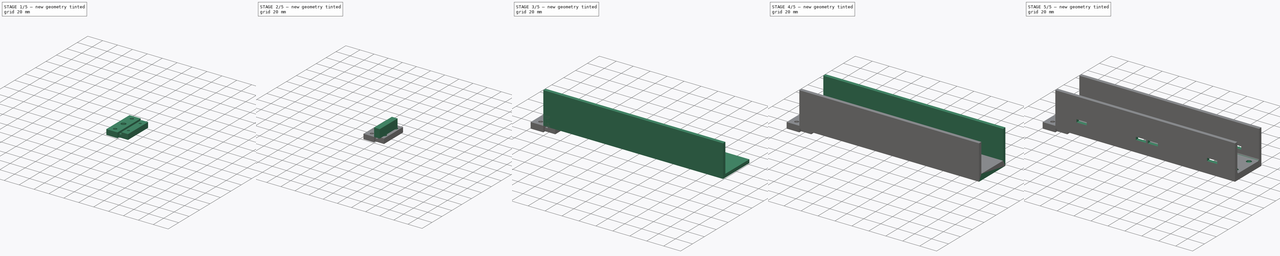
[diagram: build sequence overview — one tinted view per stage of 5, left to right]
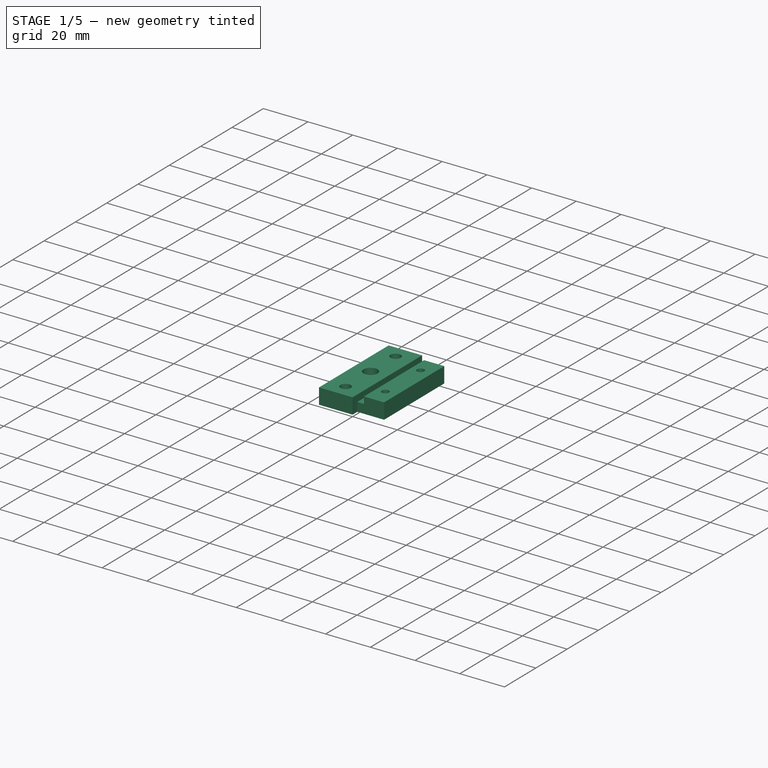
[diagram: stage 1 of 5 — iso view after this stage's code; geometry added in this stage tinted green]
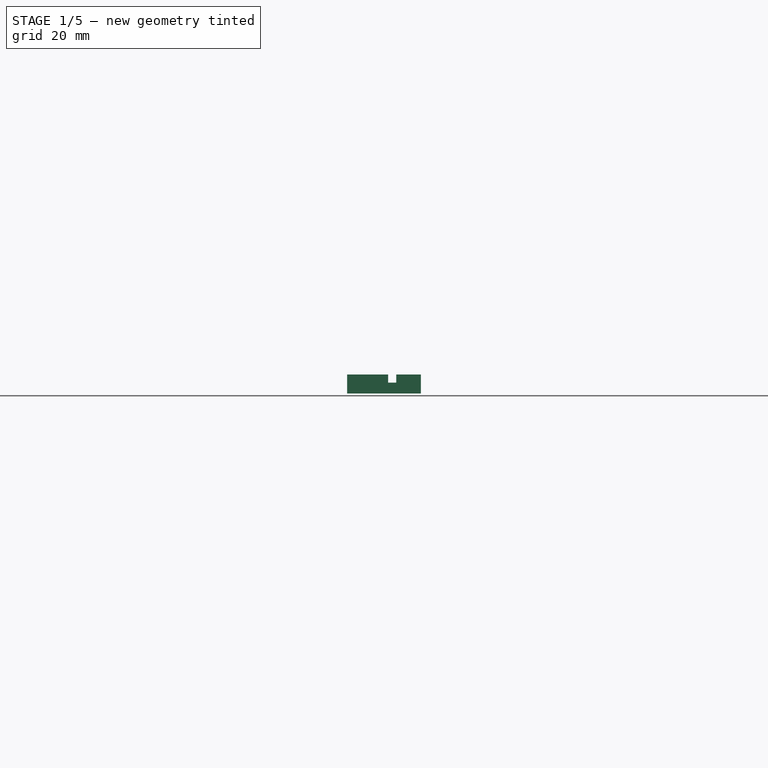
[diagram: stage 1 of 5 — front view after this stage's code; geometry added in this stage tinted green]
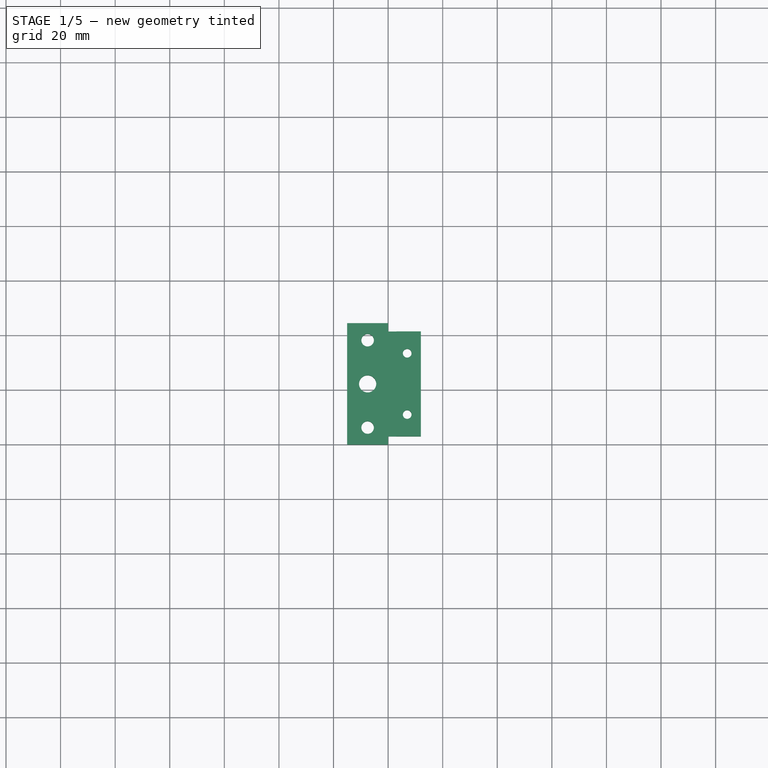
[diagram: stage 1 of 5 — top view after this stage's code; geometry added in this stage tinted green]
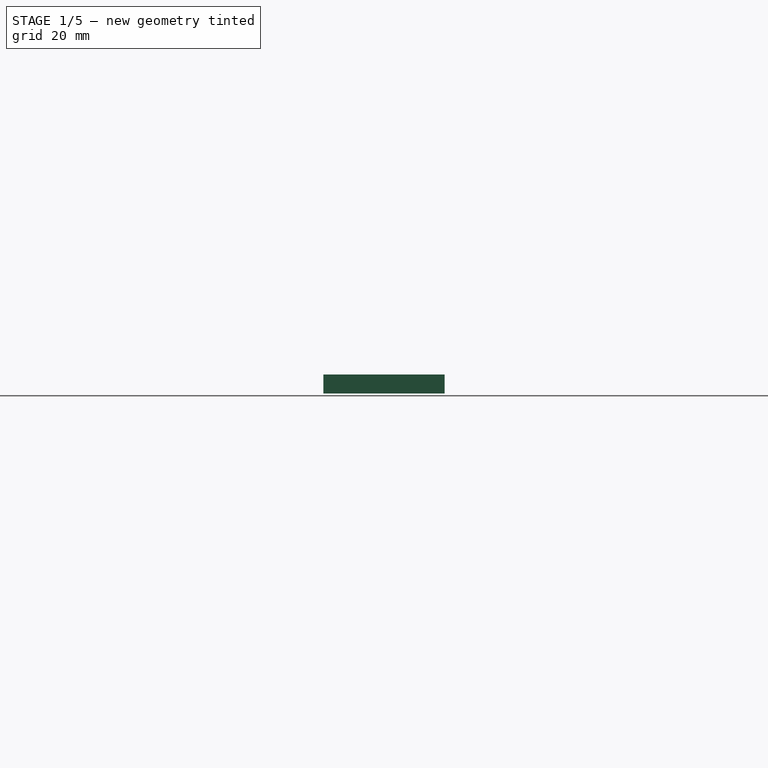
[diagram: stage 1 of 5 — right view after this stage's code; geometry added in this stage tinted green]
FCSTD DOCUMENT  (FreeCAD 1.0R39319 (Git))
Label: RackPanel
License: All rights reserved
objects: Sketcher::SketchObject×19, PartDesign::Pocket×13, PartDesign::Pad×6, PartDesign::Body×3, PartDesign::Fillet×1, Part::Feature×1
note: 102 computed .brp shape members not serialized (recipe doc carries the construction recipe); baked Part::Feature solids carry a one-line shape summary decoded from their .brp

FEATURE [PartDesign::Body] SideBarBody
  AllowCompound = false
  Group = -> [SideBarBaseSketch,SideBarPad,TopNutTrapSketch,TopNutTrapPocket,TopScrewHoleSketch,TopScrewHolePocket,BottomNutTrapSketch,BottomNutTrapPocket,BottomScrewHoleSketch,BottomScrewHolePocket]
  Origin = -> Origin001
  Tip = -> BottomScrewHolePocket
FEATURE [Sketcher::SketchObject] TabProfileSketch
  ArcFitTolerance = 1e-06
  FullyConstrained = false
  MakeInternals = false
  MapMode = 5
  sketch-geometry (8):
    g0: LineSegment StartX=-15 StartY=0 StartZ=0 EndX=0 EndY=0 EndZ=0
    g1: LineSegment StartX=0 StartY=0 StartZ=0 EndX=0 EndY=3 EndZ=0
    g2: LineSegment StartX=0 StartY=3 StartZ=0 EndX=12 EndY=3 EndZ=0
    g3: LineSegment StartX=12 StartY=3 StartZ=0 EndX=12 EndY=41.45 EndZ=0
    g4: LineSegment StartX=12 StartY=41.45 StartZ=0 EndX=0 EndY=41.45 EndZ=0
    g5: LineSegment StartX=0 StartY=41.45 StartZ=0 EndX=0 EndY=44.45 EndZ=0
    g6: LineSegment StartX=0 StartY=44.45 StartZ=0 EndX=-15 EndY=44.45 EndZ=0
    g7: LineSegment StartX=-15 StartY=44.45 StartZ=0 EndX=-15 EndY=0 EndZ=0
  constraints (8):
    c: Coincident(g0,g1)
    c: Coincident(g1,g2)
    c: Coincident(g2,g3)
    c: Coincident(g3,g4)
    c: Coincident(g4,g5)
    c: Coincident(g5,g6)
    c: Coincident(g6,g7)
    c: Coincident(g7,g0)
FEATURE [PartDesign::Pad] TabPad
  Direction = (0,0,1)
  Length = 7
  Length2 = 10
  Profile = -> TabProfileSketch
  Refine = true
  Reversed = true
  Suppressed = false
  Type = 0
FEATURE [Sketcher::SketchObject] LipPocketSketch001
  ArcFitTolerance = 1e-06
  FullyConstrained = false
  MakeInternals = false
  MapMode = 5
  sketch-geometry (4):
    g0: LineSegment StartX=0 StartY=3 StartZ=0 EndX=3 EndY=3 EndZ=0
    g1: LineSegment StartX=3 StartY=3 StartZ=0 EndX=3 EndY=41.45 EndZ=0
    g2: LineSegment StartX=3 StartY=41.45 StartZ=0 EndX=0 EndY=41.45 EndZ=0
    g3: LineSegment StartX=0 StartY=41.45 StartZ=0 EndX=0 EndY=3 EndZ=0
  constraints (4):
    c: Coincident(g0,g1)
    c: Coincident(g1,g2)
    c: Coincident(g2,g3)
    c: Coincident(g3,g0)
FEATURE [PartDesign::Pocket] LipGroovePocket
  BaseFeature = -> TabPad
  Direction = (0,0,-1)
  Length = 3
  Length2 = 5
  Profile = -> LipPocketSketch001
  Refine = true
  Suppressed = false
  Type = 0
FEATURE [Sketcher::SketchObject] RailHolesSketch
  ArcFitTolerance = 1e-06
  AttachmentOffset = pos=(0,0,-7) rot=(0,0,1;0rad)
  FullyConstrained = false
  MakeInternals = false
  MapMode = 5
  sketch-geometry (3):
    g0: Circle CenterX=-7.5 CenterY=6.225 CenterZ=0 NormalX=0 NormalY=0 NormalZ=1 AngleXU=0 Radius=2.3
    g1: Circle CenterX=-7.5 CenterY=22.225 CenterZ=0 NormalX=0 NormalY=0 NormalZ=1 AngleXU=0 Radius=3.15
    g2: Circle CenterX=-7.5 CenterY=38.225 CenterZ=0 NormalX=0 NormalY=0 NormalZ=1 AngleXU=0 Radius=2.3
FEATURE [PartDesign::Pocket] RailHolesPocket
  BaseFeature = -> LipGroovePocket
  Direction = (0,0,-1)
  Length = 5
  Length2 = 5
  Profile = -> RailHolesSketch
  Refine = true
  Suppressed = false
  Type = 1
FEATURE [Sketcher::SketchObject] TabJointClearSketch
  ArcFitTolerance = 1e-06
  FullyConstrained = false
  MakeInternals = false
  MapMode = 5
  sketch-geometry (2):
    g0: Circle CenterX=7 CenterY=11 CenterZ=0 NormalX=0 NormalY=0 NormalZ=1 AngleXU=0 Radius=1.6
    g1: Circle CenterX=7 CenterY=33.45 CenterZ=0 NormalX=0 NormalY=0 NormalZ=1 AngleXU=0 Radius=1.6
FEATURE [PartDesign::Pocket] TabJointClearPocket
  BaseFeature = -> RailHolesPocket
  Direction = (0,0,-1)
  Length = 5
  Length2 = 5
  Profile = -> TabJointClearSketch
  Refine = true
  Suppressed = false
  Type = 1
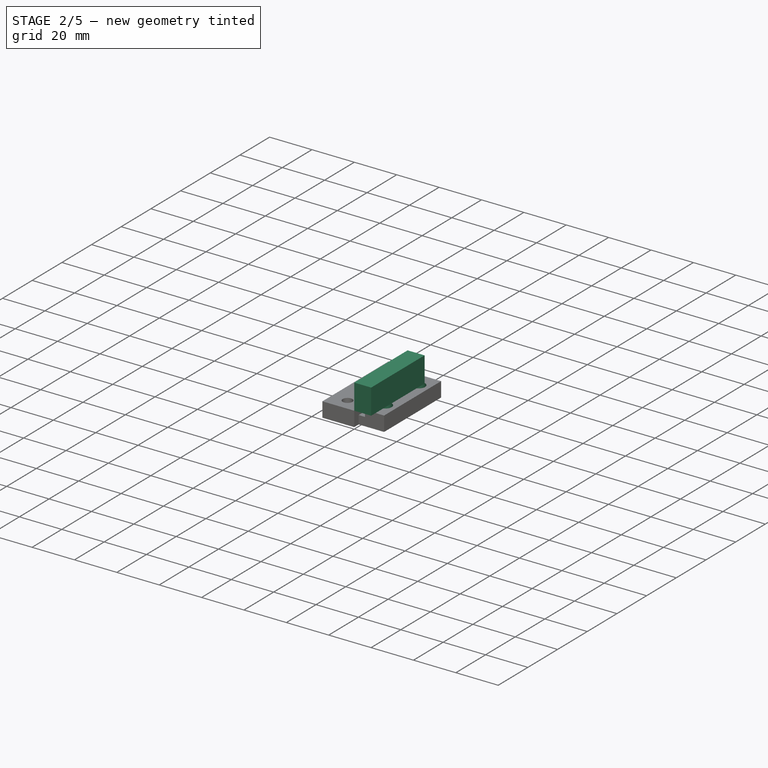
[diagram: stage 2 of 5 — iso view after this stage's code; geometry added in this stage tinted green]
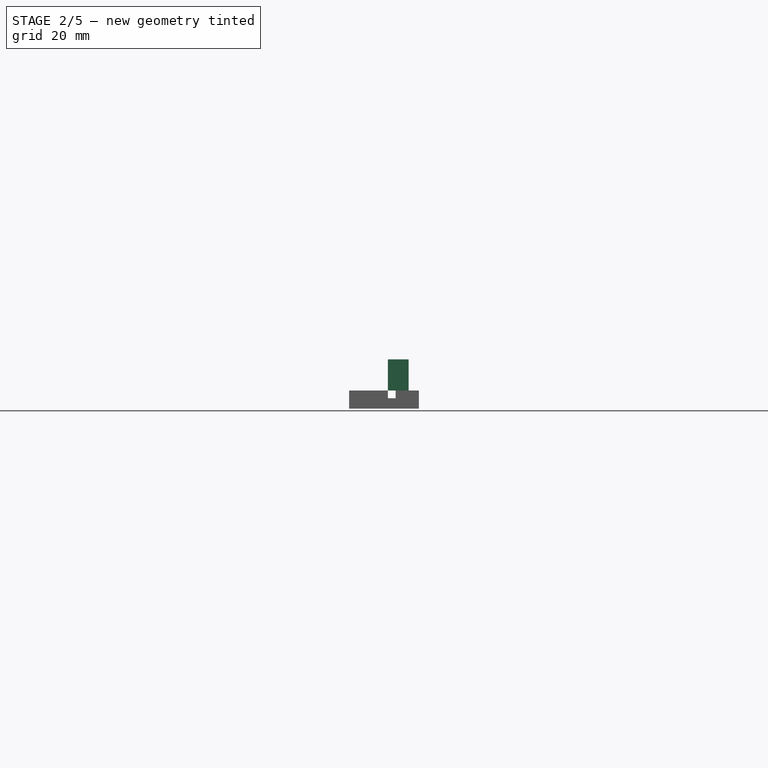
[diagram: stage 2 of 5 — front view after this stage's code; geometry added in this stage tinted green]
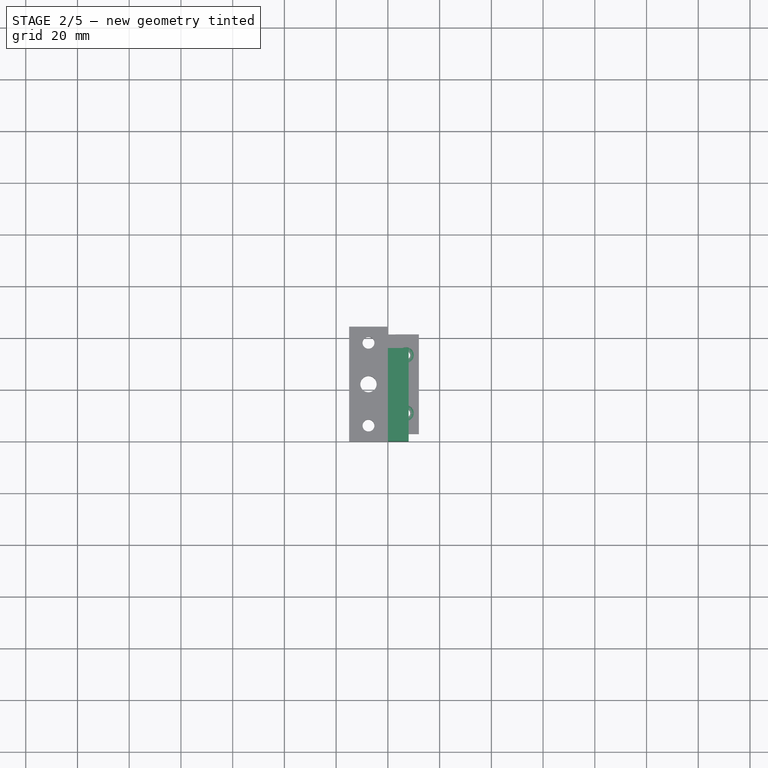
[diagram: stage 2 of 5 — top view after this stage's code; geometry added in this stage tinted green]
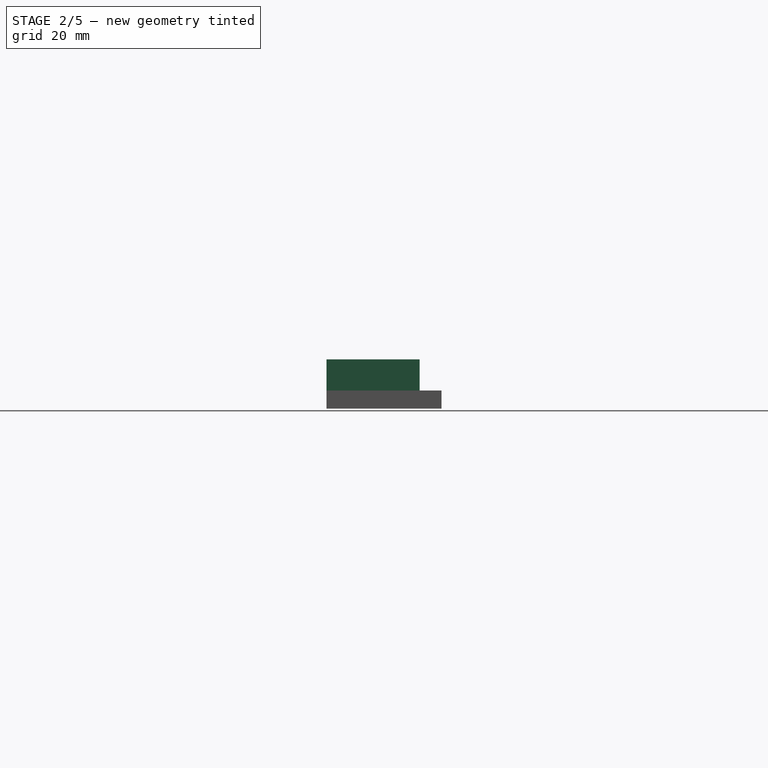
[diagram: stage 2 of 5 — right view after this stage's code; geometry added in this stage tinted green]
FEATURE [PartDesign::Body] CenterPanelBody
  AllowCompound = false
  Group = -> [FacePlateSketch,FacePlatePad,BottomWallSketch,BottomWallPad,TopWallSketch,TopWallPad,LipBlockSketch,LipBlockPad,LipPocketSketch,LipPocket,JointHolesSketch,JointHolesPocket,NutRecessSketch,NutRecessPocket,BoxCutoutSketch,BoxCutoutPocket,WallFillets,TopSlotSketch,TopSlotPocket]
  Origin = -> Origin
  Tip = -> TopSlotPocket
FEATURE [Sketcher::SketchObject] SideBarBaseSketch
  ArcFitTolerance = 1e-06
  FullyConstrained = true
  MakeInternals = false
  MapMode = 5
  sketch-geometry (4):
    g0: LineSegment StartX=0 StartY=0 StartZ=0 EndX=8 EndY=0 EndZ=0
    g1: LineSegment StartX=8 StartY=0 StartZ=0 EndX=8 EndY=36 EndZ=0
    g2: LineSegment StartX=8 StartY=36 StartZ=0 EndX=0 EndY=36 EndZ=0
    g3: LineSegment StartX=0 StartY=36 StartZ=0 EndX=0 EndY=0 EndZ=0
  constraints (11):
    c: Coincident(g0,g1)
    c: Coincident(g1,g2)
    c: Coincident(g2,g3)
    c: Coincident(g3,g0)
    c: Horizontal(g0)
    c: Horizontal(g2)
    c: Vertical(g1)
    c: Vertical(g3)
    c: DistanceX(g0,g0) = 8
    c: DistanceY(g1,g1) = 36
    c: Coincident(g0,g-1)
FEATURE [PartDesign::Pad] SideBarPad
  Direction = (0,0,1)
  Length = 12
  Length2 = 10
  Profile = -> SideBarBaseSketch
  Refine = true
  Suppressed = false
  Type = 0
FEATURE [Sketcher::SketchObject] TopNutTrapSketch
  ArcFitTolerance = 1e-06
  AttachmentOffset = pos=(0,0,-2) rot=(0,0,1;0rad)
  AttachmentSupport = -> [SideBarPad]
  FullyConstrained = false
  MakeInternals = false
  MapMode = 5
  Placement = pos=(0,34,4e-16) rot=(0,0.707107,0.707107;3.14159rad)
  sketch-geometry (4):
    g0: LineSegment StartX=-6.9 StartY=0 StartZ=0 EndX=-1.1 EndY=0 EndZ=0
    g1: LineSegment StartX=-1.1 StartY=0 StartZ=0 EndX=-1.1 EndY=8.9 EndZ=0
    g2: LineSegment StartX=-1.1 StartY=8.9 StartZ=0 EndX=-6.9 EndY=8.9 EndZ=0
    g3: LineSegment StartX=-6.9 StartY=8.9 StartZ=0 EndX=-6.9 EndY=0 EndZ=0
  constraints (4):
    c: Coincident(g0,g1)
    c: Coincident(g1,g2)
    c: Coincident(g2,g3)
    c: Coincident(g3,g0)
FEATURE [PartDesign::Pocket] TopNutTrapPocket
  BaseFeature = -> SideBarPad
  Direction = (0,-1,2e-16)
  Length = 2
  Length2 = 5
  Profile = -> TopNutTrapSketch
  Refine = true
  Suppressed = false
  Type = 0
FEATURE [Sketcher::SketchObject] TopScrewHoleSketch
  ArcFitTolerance = 1e-06
  AttachmentSupport = -> [TopNutTrapPocket]
  FullyConstrained = false
  MakeInternals = false
  MapMode = 5
  Placement = pos=(0,36,0) rot=(0,0.707107,0.707107;3.14159rad)
  sketch-geometry (1):
    g0: Circle CenterX=-4 CenterY=6 CenterZ=0 NormalX=0 NormalY=0 NormalZ=1 AngleXU=0 Radius=1.6
FEATURE [PartDesign::Pocket] TopScrewHolePocket
  BaseFeature = -> TopNutTrapPocket
  Direction = (0,-1,2e-16)
  Length = 2
  Length2 = 5
  Profile = -> TopScrewHoleSketch
  Refine = true
  Suppressed = false
  Type = 0
FEATURE [Sketcher::SketchObject] TabCounterboreSketch
  ArcFitTolerance = 1e-06
  AttachmentOffset = pos=(0,0,-7) rot=(0,0,1;0rad)
  FullyConstrained = false
  MakeInternals = false
  MapMode = 5
  sketch-geometry (2):
    g0: Circle CenterX=7 CenterY=11 CenterZ=0 NormalX=0 NormalY=0 NormalZ=1 AngleXU=0 Radius=3
    g1: Circle CenterX=7 CenterY=33.45 CenterZ=0 NormalX=0 NormalY=0 NormalZ=1 AngleXU=0 Radius=3
FEATURE [PartDesign::Pocket] TabCounterborePocket
  BaseFeature = -> TabJointClearPocket
  Direction = (0,0,-1)
  Length = 3.5
  Length2 = 5
  Profile = -> TabCounterboreSketch
  Refine = true
  Suppressed = false
  Type = 0
FEATURE [PartDesign::Body] LeftTabBody
  AllowCompound = false
  Group = -> [TabProfileSketch,TabPad,LipPocketSketch001,LipGroovePocket,RailHolesSketch,RailHolesPocket,TabJointClearSketch,TabJointClearPocket,TabCounterboreSketch,TabCounterborePocket]
  Origin = -> Origin002
  Tip = -> TabCounterborePocket
FEATURE [Part::Feature] RightTabBody
  shape: bbox 27 x 44.45 x 7 mm, 21 faces (baked)
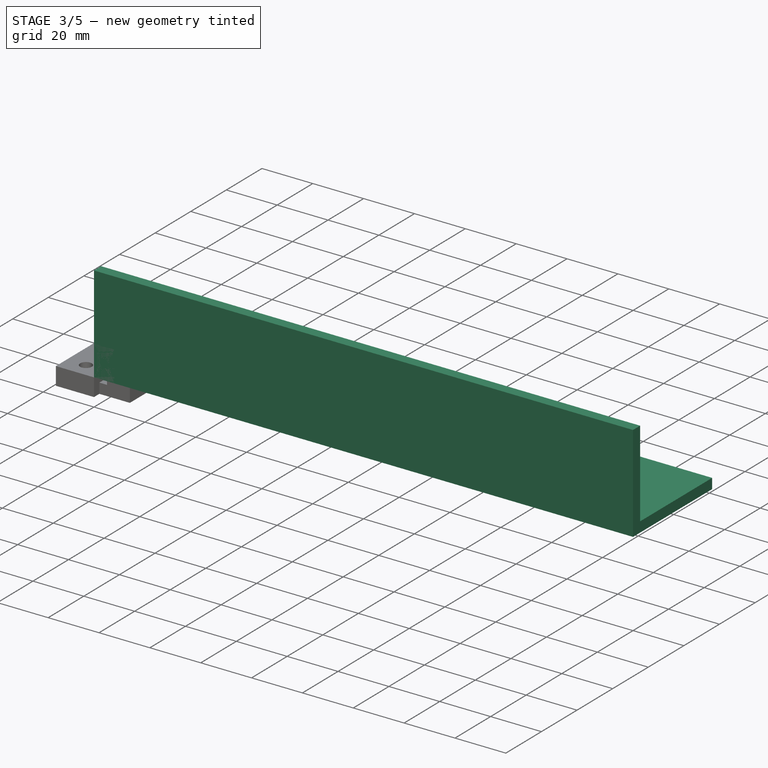
[diagram: stage 3 of 5 — iso view after this stage's code; geometry added in this stage tinted green]
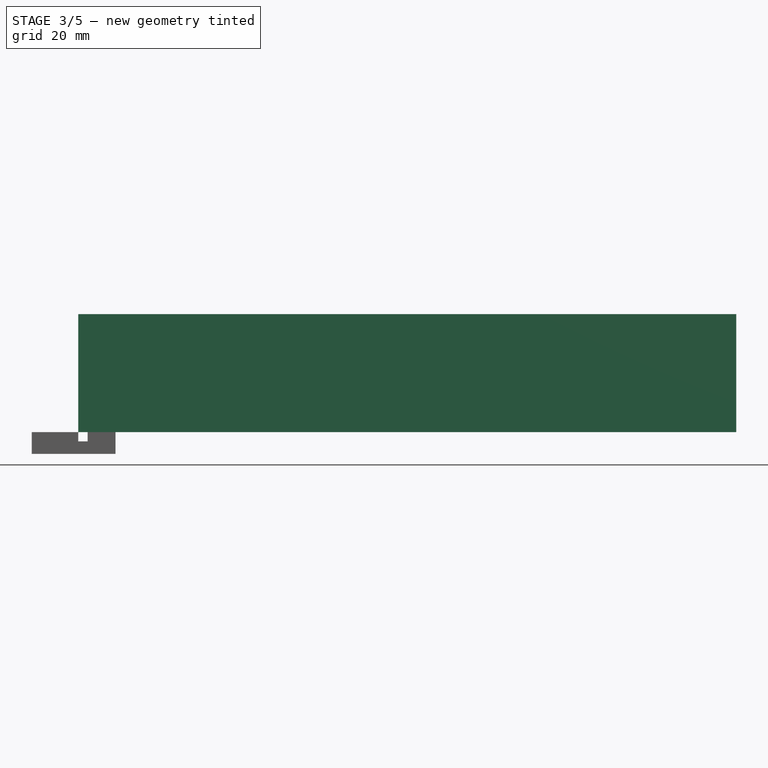
[diagram: stage 3 of 5 — front view after this stage's code; geometry added in this stage tinted green]
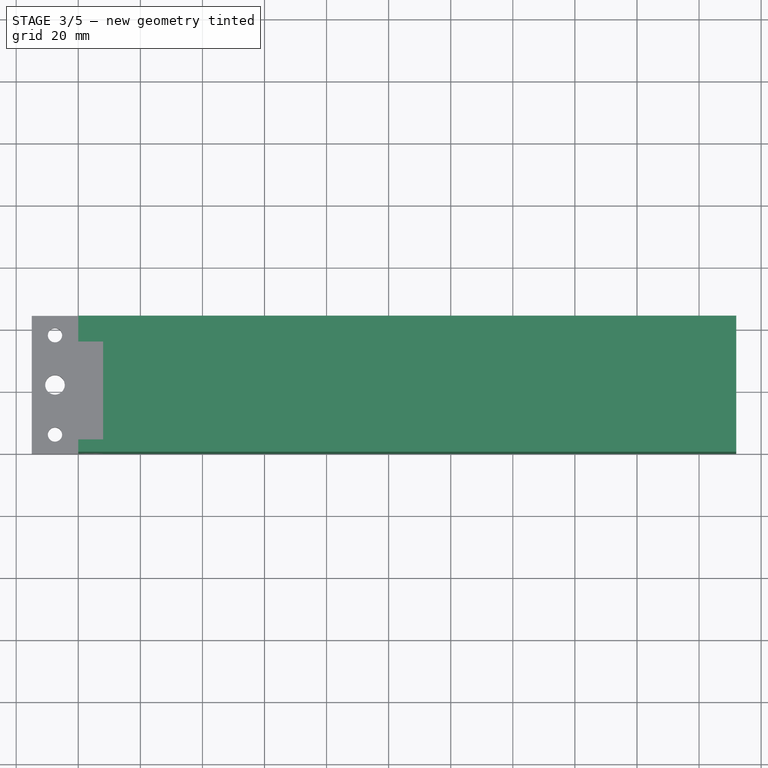
[diagram: stage 3 of 5 — top view after this stage's code; geometry added in this stage tinted green]
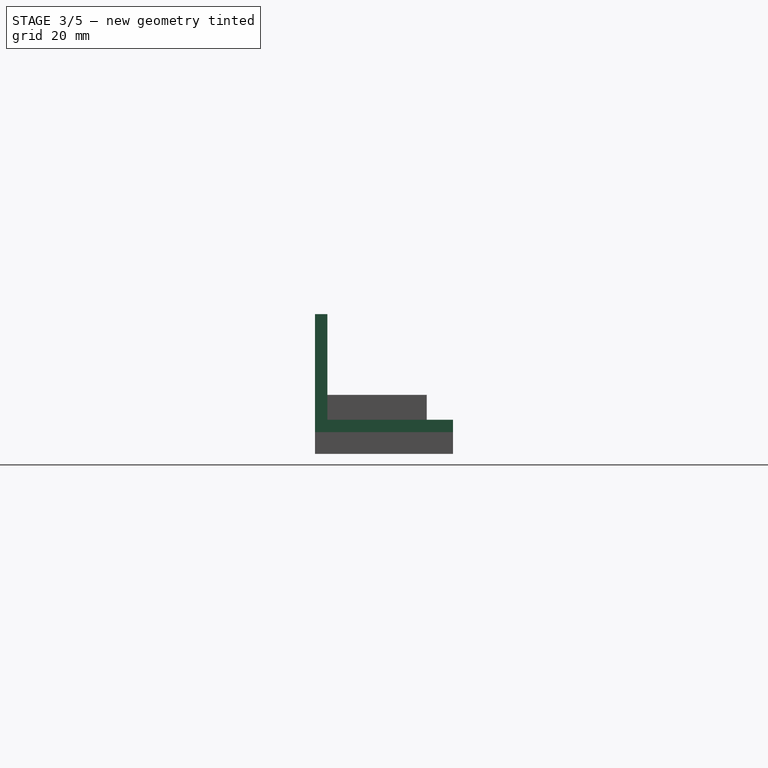
[diagram: stage 3 of 5 — right view after this stage's code; geometry added in this stage tinted green]
FEATURE [Sketcher::SketchObject] FacePlateSketch
  ArcFitTolerance = 1e-06
  FullyConstrained = false
  MakeInternals = false
  MapMode = 5
  sketch-geometry (4):
    g0: LineSegment StartX=0 StartY=0 StartZ=0 EndX=212 EndY=0 EndZ=0
    g1: LineSegment StartX=212 StartY=0 StartZ=0 EndX=212 EndY=44.45 EndZ=0
    g2: LineSegment StartX=212 StartY=44.45 StartZ=0 EndX=0 EndY=44.45 EndZ=0
    g3: LineSegment StartX=0 StartY=44.45 StartZ=0 EndX=0 EndY=0 EndZ=0
  constraints (4):
    c: Coincident(g0,g1)
    c: Coincident(g1,g2)
    c: Coincident(g2,g3)
    c: Coincident(g3,g0)
FEATURE [PartDesign::Pad] FacePlatePad
  Direction = (0,0,1)
  Length = 4
  Length2 = 10
  Profile = -> FacePlateSketch
  Refine = true
  Suppressed = false
  Type = 0
FEATURE [Sketcher::SketchObject] BottomWallSketch
  ArcFitTolerance = 1e-06
  AttachmentSupport = -> [FacePlatePad]
  FullyConstrained = false
  MakeInternals = false
  MapMode = 5
  Placement = pos=(0,0,4) rot=(0,0,1;0rad)
  sketch-geometry (4):
    g0: LineSegment StartX=0 StartY=0 StartZ=0 EndX=212 EndY=0 EndZ=0
    g1: LineSegment StartX=212 StartY=0 StartZ=0 EndX=212 EndY=4 EndZ=0
    g2: LineSegment StartX=212 StartY=4 StartZ=0 EndX=0 EndY=4 EndZ=0
    g3: LineSegment StartX=0 StartY=4 StartZ=0 EndX=0 EndY=0 EndZ=0
  constraints (4):
    c: Coincident(g0,g1)
    c: Coincident(g1,g2)
    c: Coincident(g2,g3)
    c: Coincident(g3,g0)
FEATURE [PartDesign::Pad] BottomWallPad
  BaseFeature = -> FacePlatePad
  Direction = (0,0,1)
  Length = 34
  Length2 = 10
  Profile = -> BottomWallSketch
  Refine = true
  Suppressed = false
  Type = 0
FEATURE [Sketcher::SketchObject] BottomNutTrapSketch
  ArcFitTolerance = 1e-06
  AttachmentOffset = pos=(0,0,-2) rot=(0,0,1;0rad)
  AttachmentSupport = -> [TopScrewHolePocket]
  FullyConstrained = false
  MakeInternals = false
  MapMode = 5
  Placement = pos=(0,2,-4e-16) rot=(1,0,0;1.5708rad)
  sketch-geometry (4):
    g0: LineSegment StartX=1.1 StartY=0 StartZ=0 EndX=6.9 EndY=0 EndZ=0
    g1: LineSegment StartX=6.9 StartY=0 StartZ=0 EndX=6.9 EndY=8.9 EndZ=0
    g2: LineSegment StartX=6.9 StartY=8.9 StartZ=0 EndX=1.1 EndY=8.9 EndZ=0
    g3: LineSegment StartX=1.1 StartY=8.9 StartZ=0 EndX=1.1 EndY=0 EndZ=0
  constraints (4):
    c: Coincident(g0,g1)
    c: Coincident(g1,g2)
    c: Coincident(g2,g3)
    c: Coincident(g3,g0)
FEATURE [PartDesign::Pocket] BottomNutTrapPocket
  BaseFeature = -> TopScrewHolePocket
  Direction = (0,1,-2e-16)
  Length = 2
  Length2 = 5
  Profile = -> BottomNutTrapSketch
  Refine = true
  Suppressed = false
  Type = 0
FEATURE [Sketcher::SketchObject] BottomScrewHoleSketch
  ArcFitTolerance = 1e-06
  AttachmentSupport = -> [BottomNutTrapPocket]
  FullyConstrained = false
  MakeInternals = false
  MapMode = 5
  Placement = pos=(0,0,0) rot=(1,0,0;1.5708rad)
  sketch-geometry (1):
    g0: Circle CenterX=4 CenterY=6 CenterZ=0 NormalX=0 NormalY=0 NormalZ=1 AngleXU=0 Radius=1.6
FEATURE [PartDesign::Pocket] BottomScrewHolePocket
  BaseFeature = -> BottomNutTrapPocket
  Direction = (0,1,-2e-16)
  Length = 2
  Length2 = 5
  Profile = -> BottomScrewHoleSketch
  Refine = true
  Suppressed = false
  Type = 0
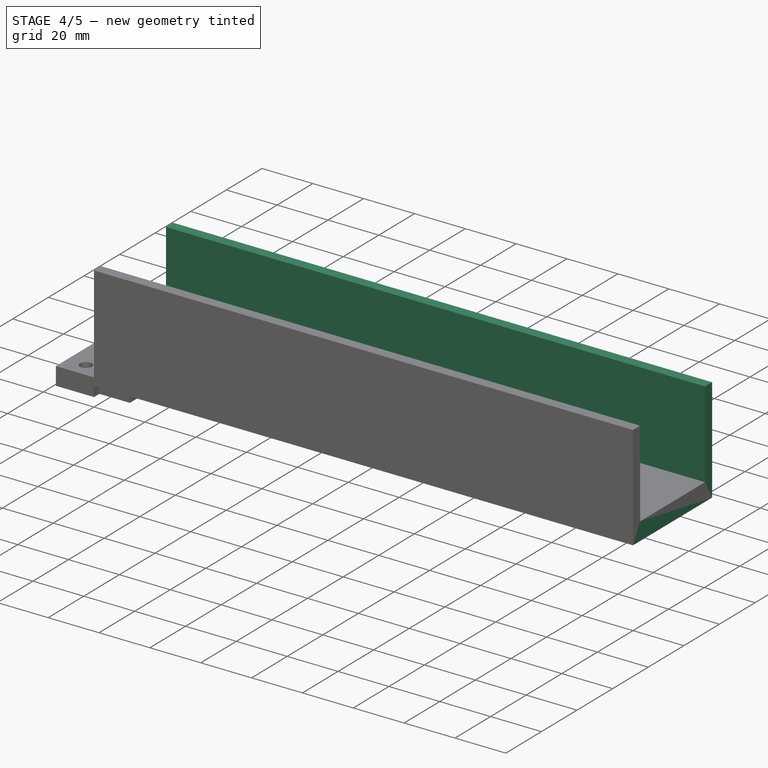
[diagram: stage 4 of 5 — iso view after this stage's code; geometry added in this stage tinted green]
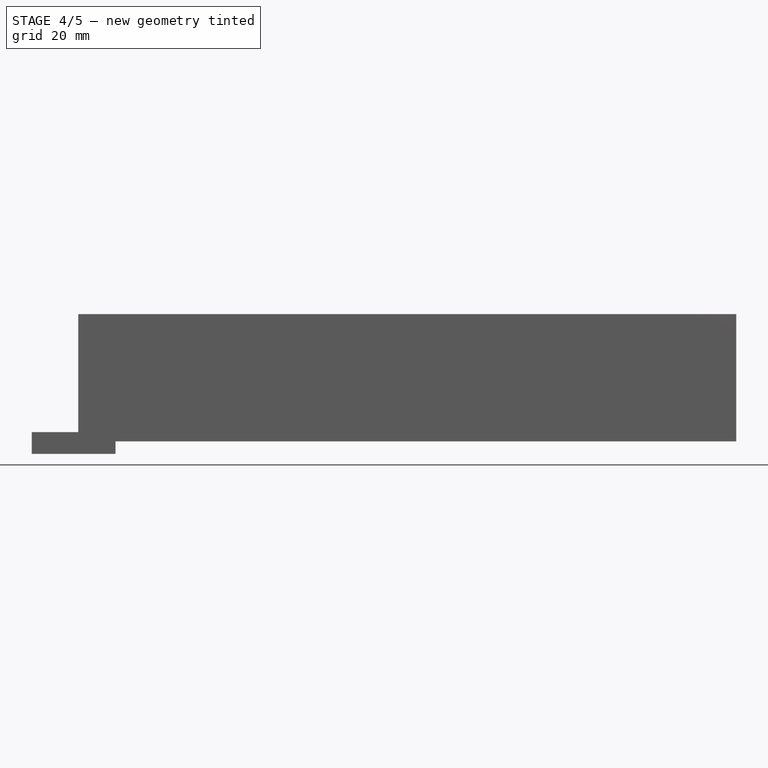
[diagram: stage 4 of 5 — front view after this stage's code; geometry added in this stage tinted green]
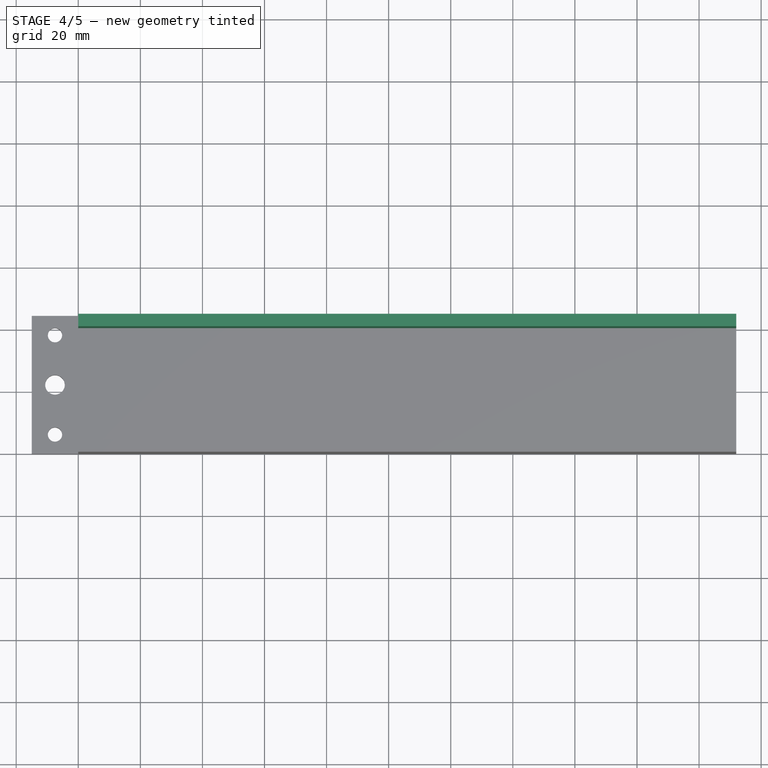
[diagram: stage 4 of 5 — top view after this stage's code; geometry added in this stage tinted green]
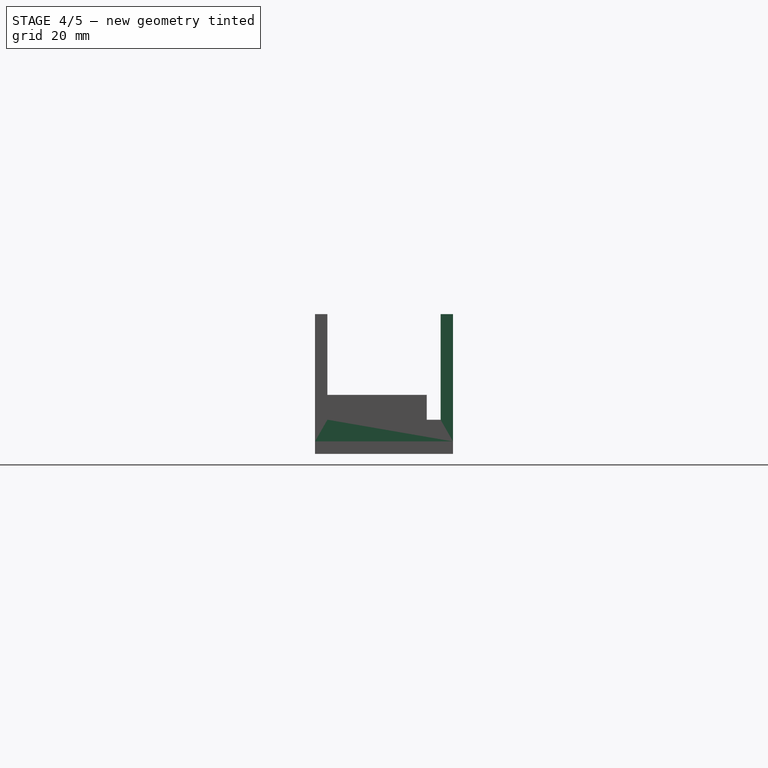
[diagram: stage 4 of 5 — right view after this stage's code; geometry added in this stage tinted green]
FEATURE [Sketcher::SketchObject] TopWallSketch
  ArcFitTolerance = 1e-06
  AttachmentSupport = -> [FacePlatePad]
  FullyConstrained = false
  MakeInternals = false
  MapMode = 5
  Placement = pos=(0,0,4) rot=(0,0,1;0rad)
  sketch-geometry (4):
    g0: LineSegment StartX=0 StartY=40.45 StartZ=0 EndX=212 EndY=40.45 EndZ=0
    g1: LineSegment StartX=212 StartY=40.45 StartZ=0 EndX=212 EndY=44.45 EndZ=0
    g2: LineSegment StartX=212 StartY=44.45 StartZ=0 EndX=0 EndY=44.45 EndZ=0
    g3: LineSegment StartX=0 StartY=44.45 StartZ=0 EndX=0 EndY=40.45 EndZ=0
  constraints (4):
    c: Coincident(g0,g1)
    c: Coincident(g1,g2)
    c: Coincident(g2,g3)
    c: Coincident(g3,g0)
FEATURE [PartDesign::Pad] TopWallPad
  BaseFeature = -> BottomWallPad
  Direction = (0,0,1)
  Length = 34
  Length2 = 10
  Profile = -> TopWallSketch
  Refine = true
  Suppressed = false
  Type = 0
FEATURE [Sketcher::SketchObject] LipBlockSketch
  ArcFitTolerance = 1e-06
  FullyConstrained = false
  MakeInternals = false
  MapMode = 5
  sketch-geometry (4):
    g0: LineSegment StartX=0 StartY=0 StartZ=0 EndX=212 EndY=0 EndZ=0
    g1: LineSegment StartX=212 StartY=0 StartZ=0 EndX=212 EndY=44.45 EndZ=0
    g2: LineSegment StartX=212 StartY=44.45 StartZ=0 EndX=0 EndY=44.45 EndZ=0
    g3: LineSegment StartX=0 StartY=44.45 StartZ=0 EndX=0 EndY=0 EndZ=0
  constraints (4):
    c: Coincident(g0,g1)
    c: Coincident(g1,g2)
    c: Coincident(g2,g3)
    c: Coincident(g3,g0)
FEATURE [PartDesign::Pad] LipBlockPad
  BaseFeature = -> TopWallPad
  Direction = (0,0,1)
  Length = 3
  Length2 = 10
  Profile = -> LipBlockSketch
  Refine = true
  Reversed = true
  Suppressed = false
  Type = 0
FEATURE [Sketcher::SketchObject] LipPocketSketch
  ArcFitTolerance = 1e-06
  AttachmentOffset = pos=(0,0,-3) rot=(0,0,1;0rad)
  FullyConstrained = false
  MakeInternals = false
  MapMode = 5
  sketch-geometry (4):
    g0: LineSegment StartX=3 StartY=3 StartZ=0 EndX=209 EndY=3 EndZ=0
    g1: LineSegment StartX=209 StartY=3 StartZ=0 EndX=209 EndY=41.45 EndZ=0
    g2: LineSegment StartX=209 StartY=41.45 StartZ=0 EndX=3 EndY=41.45 EndZ=0
    g3: LineSegment StartX=3 StartY=41.45 StartZ=0 EndX=3 EndY=3 EndZ=0
  constraints (4):
    c: Coincident(g0,g1)
    c: Coincident(g1,g2)
    c: Coincident(g2,g3)
    c: Coincident(g3,g0)
FEATURE [PartDesign::Pocket] LipPocket
  BaseFeature = -> LipBlockPad
  Direction = (0,0,-1)
  Length = 3
  Length2 = 5
  Profile = -> LipPocketSketch
  Refine = true
  Suppressed = false
  Type = 0
FEATURE [Sketcher::SketchObject] JointHolesSketch
  ArcFitTolerance = 1e-06
  FullyConstrained = false
  MakeInternals = false
  MapMode = 5
  sketch-geometry (4):
    g0: Circle CenterX=7 CenterY=11 CenterZ=0 NormalX=0 NormalY=0 NormalZ=1 AngleXU=0 Radius=1.6
    g1: Circle CenterX=205 CenterY=11 CenterZ=0 NormalX=0 NormalY=0 NormalZ=1 AngleXU=0 Radius=1.6
    g2: Circle CenterX=7 CenterY=33.45 CenterZ=0 NormalX=0 NormalY=0 NormalZ=1 AngleXU=0 Radius=1.6
    g3: Circle CenterX=205 CenterY=33.45 CenterZ=0 NormalX=0 NormalY=0 NormalZ=1 AngleXU=0 Radius=1.6
FEATURE [PartDesign::Pocket] JointHolesPocket
  BaseFeature = -> LipPocket
  Direction = (0,0,-1)
  Length = 5
  Length2 = 5
  Profile = -> JointHolesSketch
  Refine = true
  Suppressed = false
  Type = 1
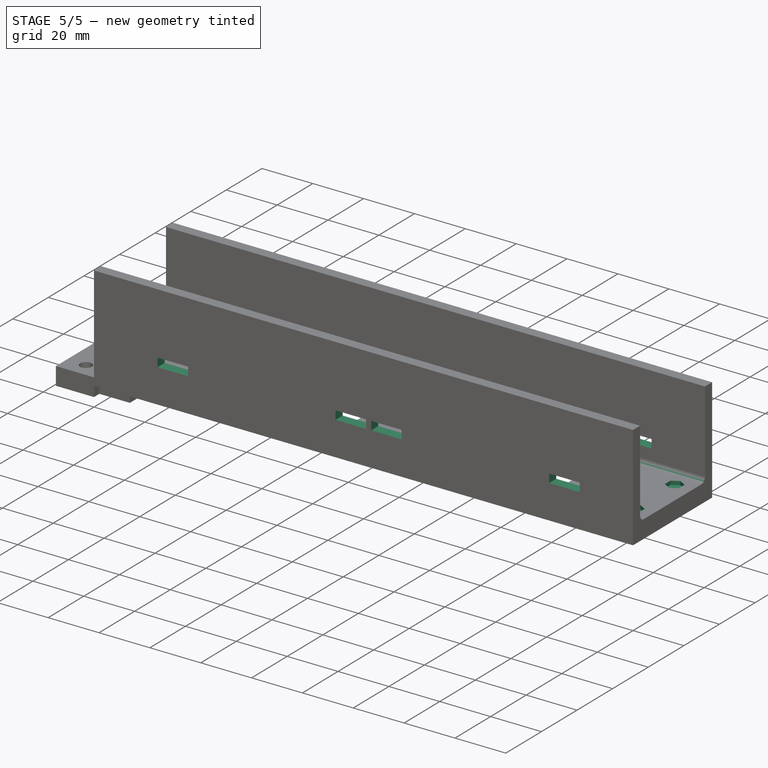
[diagram: stage 5 of 5 — iso view after this stage's code; geometry added in this stage tinted green]
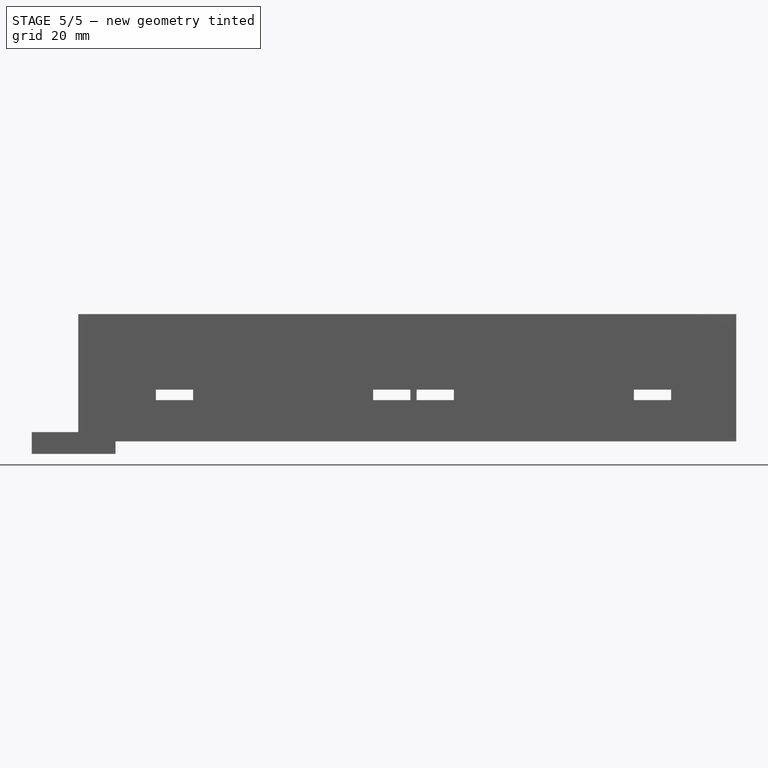
[diagram: stage 5 of 5 — front view after this stage's code; geometry added in this stage tinted green]
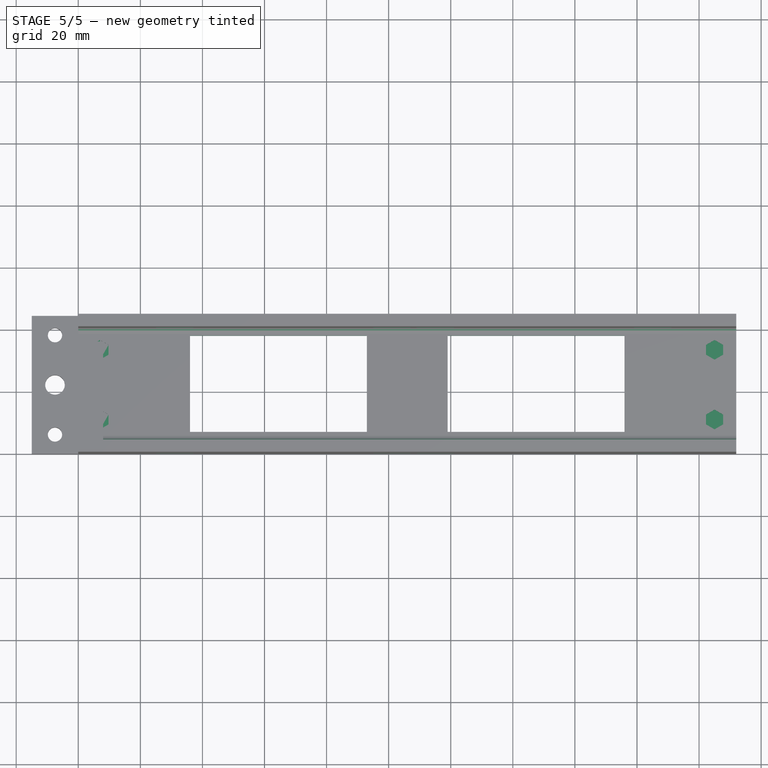
[diagram: stage 5 of 5 — top view after this stage's code; geometry added in this stage tinted green]
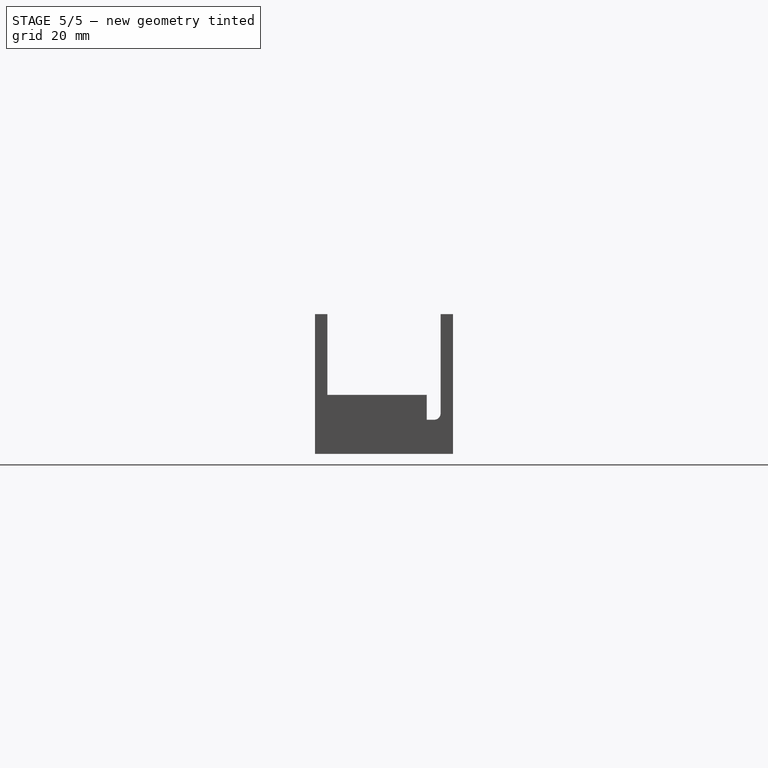
[diagram: stage 5 of 5 — right view after this stage's code; geometry added in this stage tinted green]
FEATURE [Sketcher::SketchObject] NutRecessSketch
  ArcFitTolerance = 1e-06
  AttachmentSupport = -> [FacePlatePad]
  FullyConstrained = false
  MakeInternals = false
  MapMode = 5
  Placement = pos=(0,0,4) rot=(0,0,1;0rad)
  sketch-geometry (24):
    g0: LineSegment StartX=9.75 StartY=12.5877 StartZ=0 EndX=7 EndY=14.1754 EndZ=0
    g1: LineSegment StartX=7 StartY=14.1754 StartZ=0 EndX=4.25 EndY=12.5877 EndZ=0
    g2: LineSegment StartX=4.25 StartY=12.5877 StartZ=0 EndX=4.25 EndY=9.41229 EndZ=0
    g3: LineSegment StartX=4.25 StartY=9.41229 StartZ=0 EndX=7 EndY=7.82457 EndZ=0
    g4: LineSegment StartX=7 StartY=7.82457 StartZ=0 EndX=9.75 EndY=9.41229 EndZ=0
    g5: LineSegment StartX=9.75 StartY=9.41229 StartZ=0 EndX=9.75 EndY=12.5877 EndZ=0
    g6: LineSegment StartX=207.75 StartY=12.5877 StartZ=0 EndX=205 EndY=14.1754 EndZ=0
    g7: LineSegment StartX=205 StartY=14.1754 StartZ=0 EndX=202.25 EndY=12.5877 EndZ=0
    g8: LineSegment StartX=202.25 StartY=12.5877 StartZ=0 EndX=202.25 EndY=9.41229 EndZ=0
    g9: LineSegment StartX=202.25 StartY=9.41229 StartZ=0 EndX=205 EndY=7.82457 EndZ=0
    g10: LineSegment StartX=205 StartY=7.82457 StartZ=0 EndX=207.75 EndY=9.41229 EndZ=0
    g11: LineSegment StartX=207.75 StartY=9.41229 StartZ=0 EndX=207.75 EndY=12.5877 EndZ=0
    g12: LineSegment StartX=9.75 StartY=35.0377 StartZ=0 EndX=7 EndY=36.6254 EndZ=0
    g13: LineSegment StartX=7 StartY=36.6254 StartZ=0 EndX=4.25 EndY=35.0377 EndZ=0
    g14: LineSegment StartX=4.25 StartY=35.0377 StartZ=0 EndX=4.25 EndY=31.8623 EndZ=0
    g15: LineSegment StartX=4.25 StartY=31.8623 StartZ=0 EndX=7 EndY=30.2746 EndZ=0
    g16: LineSegment StartX=7 StartY=30.2746 StartZ=0 EndX=9.75 EndY=31.8623 EndZ=0
    g17: LineSegment StartX=9.75 StartY=31.8623 StartZ=0 EndX=9.75 EndY=35.0377 EndZ=0
    g18: LineSegment StartX=207.75 StartY=35.0377 StartZ=0 EndX=205 EndY=36.6254 EndZ=0
    g19: LineSegment StartX=205 StartY=36.6254 StartZ=0 EndX=202.25 EndY=35.0377 EndZ=0
    g20: LineSegment StartX=202.25 StartY=35.0377 StartZ=0 EndX=202.25 EndY=31.8623 EndZ=0
    g21: LineSegment StartX=202.25 StartY=31.8623 StartZ=0 EndX=205 EndY=30.2746 EndZ=0
    g22: LineSegment StartX=205 StartY=30.2746 StartZ=0 EndX=207.75 EndY=31.8623 EndZ=0
    g23: LineSegment StartX=207.75 StartY=31.8623 StartZ=0 EndX=207.75 EndY=35.0377 EndZ=0
  constraints (24):
    c: Coincident(g0,g1)
    c: Coincident(g1,g2)
    c: Coincident(g2,g3)
    c: Coincident(g3,g4)
    c: Coincident(g4,g5)
    c: Coincident(g5,g0)
    c: Coincident(g6,g7)
    c: Coincident(g7,g8)
    c: Coincident(g8,g9)
    c: Coincident(g9,g10)
    c: Coincident(g10,g11)
    c: Coincident(g11,g6)
    c: Coincident(g12,g13)
    c: Coincident(g13,g14)
    c: Coincident(g14,g15)
    c: Coincident(g15,g16)
    c: Coincident(g16,g17)
    c: Coincident(g17,g12)
    c: Coincident(g18,g19)
    c: Coincident(g19,g20)
    c: Coincident(g20,g21)
    c: Coincident(g21,g22)
    c: Coincident(g22,g23)
    c: Coincident(g23,g18)
FEATURE [PartDesign::Pocket] NutRecessPocket
  BaseFeature = -> JointHolesPocket
  Direction = (0,0,-1)
  Length = 1.5
  Length2 = 5
  Profile = -> NutRecessSketch
  Refine = true
  Suppressed = false
  Type = 0
FEATURE [Sketcher::SketchObject] BoxCutoutSketch
  ArcFitTolerance = 1e-06
  AttachmentOffset = pos=(0,0,-3) rot=(0,0,1;0rad)
  FullyConstrained = false
  MakeInternals = false
  MapMode = 5
  sketch-geometry (8):
    g0: LineSegment StartX=36 StartY=7 StartZ=0 EndX=93 EndY=7 EndZ=0
    g1: LineSegment StartX=93 StartY=7 StartZ=0 EndX=93 EndY=38 EndZ=0
    g2: LineSegment StartX=93 StartY=38 StartZ=0 EndX=36 EndY=38 EndZ=0
    g3: LineSegment StartX=36 StartY=38 StartZ=0 EndX=36 EndY=7 EndZ=0
    g4: LineSegment StartX=119 StartY=7 StartZ=0 EndX=176 EndY=7 EndZ=0
    g5: LineSegment StartX=176 StartY=7 StartZ=0 EndX=176 EndY=38 EndZ=0
    g6: LineSegment StartX=176 StartY=38 StartZ=0 EndX=119 EndY=38 EndZ=0
    g7: LineSegment StartX=119 StartY=38 StartZ=0 EndX=119 EndY=7 EndZ=0
  constraints (8):
    c: Coincident(g0,g1)
    c: Coincident(g1,g2)
    c: Coincident(g2,g3)
    c: Coincident(g3,g0)
    c: Coincident(g4,g5)
    c: Coincident(g5,g6)
    c: Coincident(g6,g7)
    c: Coincident(g7,g4)
FEATURE [PartDesign::Pocket] BoxCutoutPocket
  BaseFeature = -> NutRecessPocket
  Direction = (0,0,-1)
  Length = 5
  Length2 = 5
  Profile = -> BoxCutoutSketch
  Refine = true
  Reversed = true
  Suppressed = false
  Type = 1
FEATURE [PartDesign::Fillet] WallFillets
  Base = -> BoxCutoutPocket [Edge34,Edge35]
  BaseFeature = -> BoxCutoutPocket
  Radius = 2
  SupportTransform = false
  Suppressed = false
  UseAllEdges = false
FEATURE [Sketcher::SketchObject] TopSlotSketch
  ArcFitTolerance = 1e-06
  AttachmentSupport = -> [WallFillets]
  FullyConstrained = true
  MakeInternals = false
  MapMode = 5
  Placement = pos=(0,44.45,0) rot=(0,0.707107,0.707107;3.14159rad)
  sketch-geometry (16):
    g0: LineSegment StartX=-37 StartY=10.3 StartZ=0 EndX=-25 EndY=10.3 EndZ=0
    g1: LineSegment StartX=-25 StartY=10.3 StartZ=0 EndX=-25 EndY=13.7 EndZ=0
    g2: LineSegment StartX=-25 StartY=13.7 StartZ=0 EndX=-37 EndY=13.7 EndZ=0
    g3: LineSegment StartX=-37 StartY=13.7 StartZ=0 EndX=-37 EndY=10.3 EndZ=0
    g4: LineSegment StartX=-107 StartY=10.3 StartZ=0 EndX=-95 EndY=10.3 EndZ=0
    g5: LineSegment StartX=-95 StartY=10.3 StartZ=0 EndX=-95 EndY=13.7 EndZ=0
    g6: LineSegment StartX=-95 StartY=13.7 StartZ=0 EndX=-107 EndY=13.7 EndZ=0
    g7: LineSegment StartX=-107 StartY=13.7 StartZ=0 EndX=-107 EndY=10.3 EndZ=0
    g8: LineSegment StartX=-121 StartY=10.3 StartZ=0 EndX=-109 EndY=10.3 EndZ=0
    g9: LineSegment StartX=-109 StartY=10.3 StartZ=0 EndX=-109 EndY=13.7 EndZ=0
    g10: LineSegment StartX=-109 StartY=13.7 StartZ=0 EndX=-121 EndY=13.7 EndZ=0
    g11: LineSegment StartX=-121 StartY=13.7 StartZ=0 EndX=-121 EndY=10.3 EndZ=0
    g12: LineSegment StartX=-191 StartY=10.3 StartZ=0 EndX=-179 EndY=10.3 EndZ=0
    g13: LineSegment StartX=-179 StartY=10.3 StartZ=0 EndX=-179 EndY=13.7 EndZ=0
    g14: LineSegment StartX=-179 StartY=13.7 StartZ=0 EndX=-191 EndY=13.7 EndZ=0
    g15: LineSegment StartX=-191 StartY=13.7 StartZ=0 EndX=-191 EndY=10.3 EndZ=0
  constraints (48):
    c: Coincident(g0,g1)
    c: Coincident(g1,g2)
    c: Coincident(g2,g3)
    c: Coincident(g3,g0)
    c: Horizontal(g0)
    c: Horizontal(g2)
    c: Vertical(g1)
    c: Vertical(g3)
    c: DistanceX(g0,g0) = 12
    c: DistanceY(g1,g1) = 3.4
    c: DistanceX(g-1,g0) = -37
    c: DistanceY(g-1,g0) = 10.3
    c: Coincident(g4,g5)
    c: Coincident(g5,g6)
    c: Coincident(g6,g7)
    c: Coincident(g7,g4)
    c: Horizontal(g4)
    c: Horizontal(g6)
    c: Vertical(g5)
    c: Vertical(g7)
    c: DistanceX(g4,g4) = 12
    c: DistanceY(g5,g5) = 3.4
    c: DistanceX(g-1,g4) = -107
    c: DistanceY(g-1,g4) = 10.3
    c: Coincident(g8,g9)
    c: Coincident(g9,g10)
    c: Coincident(g10,g11)
    c: Coincident(g11,g8)
    c: Horizontal(g8)
    c: Horizontal(g10)
    c: Vertical(g9)
    c: Vertical(g11)
    c: DistanceX(g8,g8) = 12
    c: DistanceY(g9,g9) = 3.4
    c: DistanceX(g-1,g8) = -121
    c: DistanceY(g-1,g8) = 10.3
    c: Coincident(g12,g13)
    c: Coincident(g13,g14)
    c: Coincident(g14,g15)
    c: Coincident(g15,g12)
    c: Horizontal(g12)
    c: Horizontal(g14)
    c: Vertical(g13)
    c: Vertical(g15)
    c: DistanceX(g12,g12) = 12
    c: DistanceY(g13,g13) = 3.4
    c: DistanceX(g-1,g12) = -191
    c: DistanceY(g-1,g12) = 10.3
FEATURE [PartDesign::Pocket] TopSlotPocket
  BaseFeature = -> WallFillets
  Direction = (0,-1,2e-16)
  Length = 5
  Length2 = 5
  Profile = -> TopSlotSketch
  Refine = true
  Suppressed = false
  Type = 1
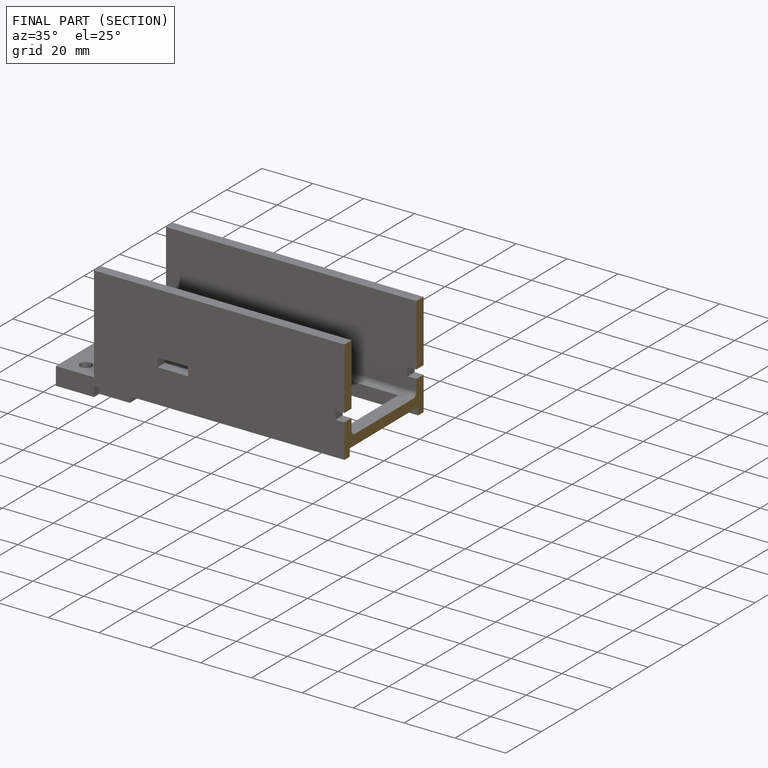
[diagram: finished part — half-section view (interior)]
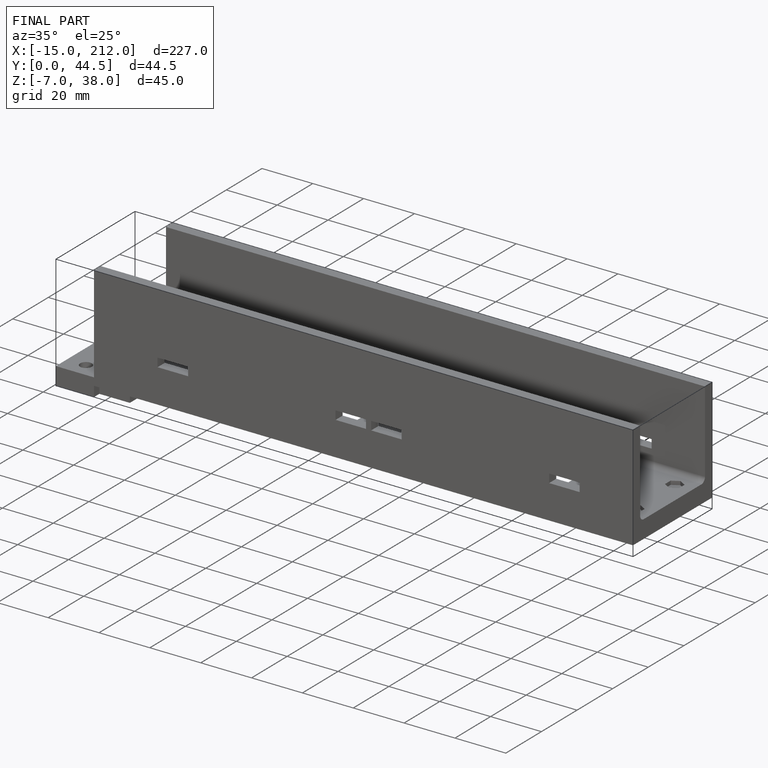
[diagram: finished part — iso view with bounding-box wireframe]
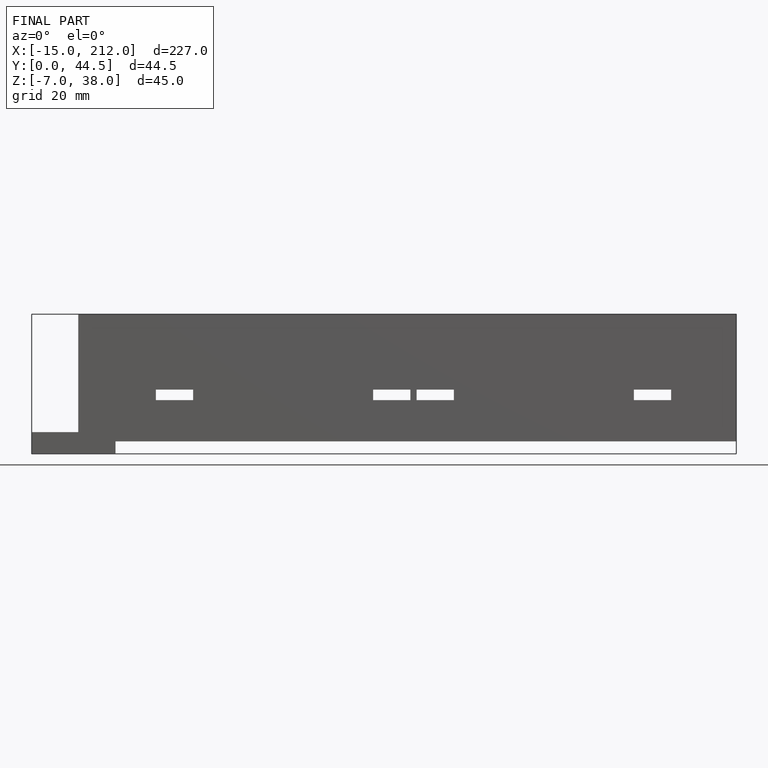
[diagram: finished part — front view with bounding-box wireframe]
